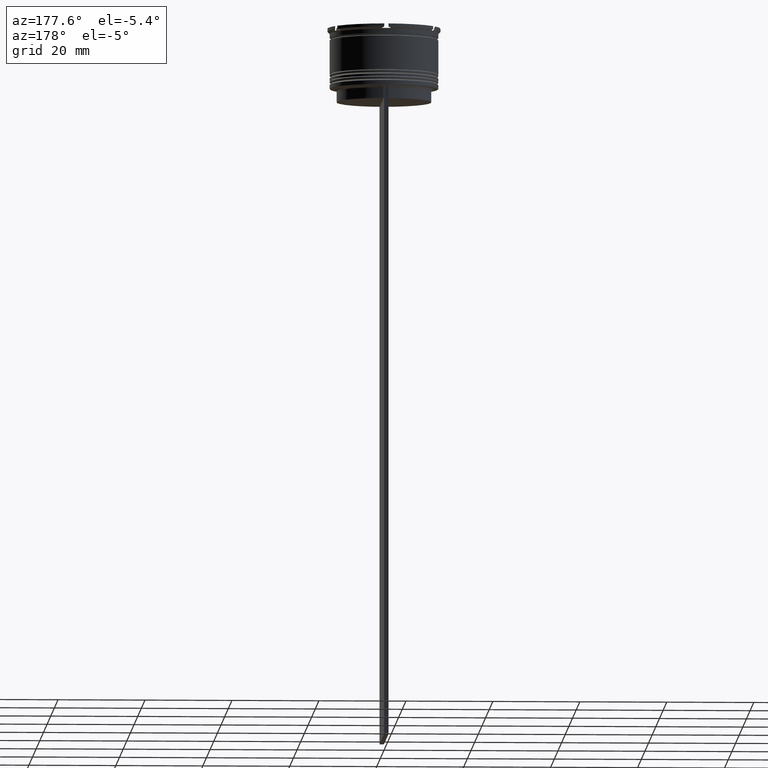
[diagram: clean part render]
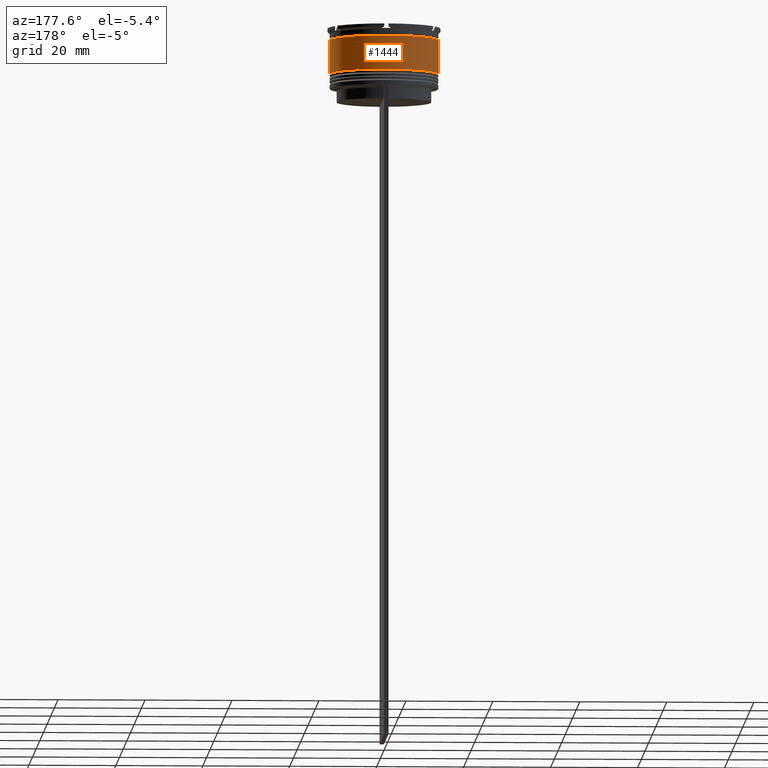
[diagram: same view with one face highlighted and labeled with its STEP entity id]
A machine part, auxiliary view. The second image highlights one B-rep face of the part: STEP entity #1444.
In plain terms, the highlighted cylindrical surface (partial cylindrical patch) has radius 12.5 mm, axis along (-0, -0, 1).
Its self-contained STEP definition (entity closure, byte-faithful):
#182 = CYLINDRICAL_SURFACE ( 'NONE', #1655, 12.50000000000000000 ) ;
#227 = VECTOR ( 'NONE', #523, 1000.000000000000000 ) ;
#233 = DIRECTION ( 'NONE',  ( 1.000000000000000000, 0.000000000000000000, 0.000000000000000000 ) ) ;
#276 = DIRECTION ( 'NONE',  ( -0.000000000000000000, -0.000000000000000000, 1.000000000000000000 ) ) ;
#490 = CARTESIAN_POINT ( 'NONE',  ( 0.000000000000000000, 0.000000000000000000, -10.50000000000000178 ) ) ;
#513 = ORIENTED_EDGE ( 'NONE', *, *, #1679, .T. ) ;
#523 = DIRECTION ( 'NONE',  ( -0.000000000000000000, -0.000000000000000000, 1.000000000000000000 ) ) ;
#569 = ORIENTED_EDGE ( 'NONE', *, *, #829, .F. ) ;
#711 = VERTEX_POINT ( 'NONE', #2256 ) ;
#740 = CARTESIAN_POINT ( 'NONE',  ( -12.50000000000000000, 1.530808498934191521E-15, 0.000000000000000000 ) ) ;
#769 = CARTESIAN_POINT ( 'NONE',  ( -12.49999999999999822, 1.530808498934191324E-15, -2.699999999999999289 ) ) ;
#829 = EDGE_CURVE ( 'NONE', #711, #2552, #2729, .T. ) ;
#832 = EDGE_LOOP ( 'NONE', ( #2096, #513, #569, #2582 ) ) ;
#1129 = CARTESIAN_POINT ( 'NONE',  ( 0.000000000000000000, 0.000000000000000000, -2.699999999999999289 ) ) ;
#1224 = DIRECTION ( 'NONE',  ( 1.000000000000000000, 0.000000000000000000, 0.000000000000000000 ) ) ;
#1344 = VERTEX_POINT ( 'NONE', #2094 ) ;
#1418 = LINE ( 'NONE', #2035, #1431 ) ;
#1431 = VECTOR ( 'NONE', #2474, 1000.000000000000000 ) ;
#1444 = ADVANCED_FACE ( 'NONE', ( #2623 ), #182, .T. ) ;
#1636 = CARTESIAN_POINT ( 'NONE',  ( 12.50000000000000178, 0.000000000000000000, -10.50000000000000178 ) ) ;
#1655 = AXIS2_PLACEMENT_3D ( 'NONE', #2637, #1743, #2159 ) ;
#1679 = EDGE_CURVE ( 'NONE', #1344, #2552, #2530, .T. ) ;
#1743 = DIRECTION ( 'NONE',  ( -0.000000000000000000, -0.000000000000000000, 1.000000000000000000 ) ) ;
#1939 = AXIS2_PLACEMENT_3D ( 'NONE', #1129, #2803, #1224 ) ;
#1986 = EDGE_CURVE ( 'NONE', #2883, #1344, #2228, .T. ) ;
#2035 = CARTESIAN_POINT ( 'NONE',  ( 12.50000000000000000, 0.000000000000000000, 0.000000000000000000 ) ) ;
#2094 = CARTESIAN_POINT ( 'NONE',  ( -12.50000000000000355, 1.530808498934191916E-15, -10.50000000000000178 ) ) ;
#2096 = ORIENTED_EDGE ( 'NONE', *, *, #1986, .T. ) ;
#2159 = DIRECTION ( 'NONE',  ( 1.000000000000000000, 0.000000000000000000, 0.000000000000000000 ) ) ;
#2228 = CIRCLE ( 'NONE', #2504, 12.50000000000000178 ) ;
#2256 = CARTESIAN_POINT ( 'NONE',  ( 12.49999999999999822, 0.000000000000000000, -2.699999999999999289 ) ) ;
#2474 = DIRECTION ( 'NONE',  ( -0.000000000000000000, -0.000000000000000000, 1.000000000000000000 ) ) ;
#2504 = AXIS2_PLACEMENT_3D ( 'NONE', #490, #276, #233 ) ;
#2530 = LINE ( 'NONE', #740, #227 ) ;
#2552 = VERTEX_POINT ( 'NONE', #769 ) ;
#2582 = ORIENTED_EDGE ( 'NONE', *, *, #2802, .F. ) ;
#2623 = FACE_OUTER_BOUND ( 'NONE', #832, .T. ) ;
#2637 = CARTESIAN_POINT ( 'NONE',  ( 0.000000000000000000, 0.000000000000000000, 0.000000000000000000 ) ) ;
#2729 = CIRCLE ( 'NONE', #1939, 12.49999999999999822 ) ;
#2802 = EDGE_CURVE ( 'NONE', #2883, #711, #1418, .T. ) ;
#2803 = DIRECTION ( 'NONE',  ( -0.000000000000000000, -0.000000000000000000, 1.000000000000000000 ) ) ;
#2883 = VERTEX_POINT ( 'NONE', #1636 ) ;